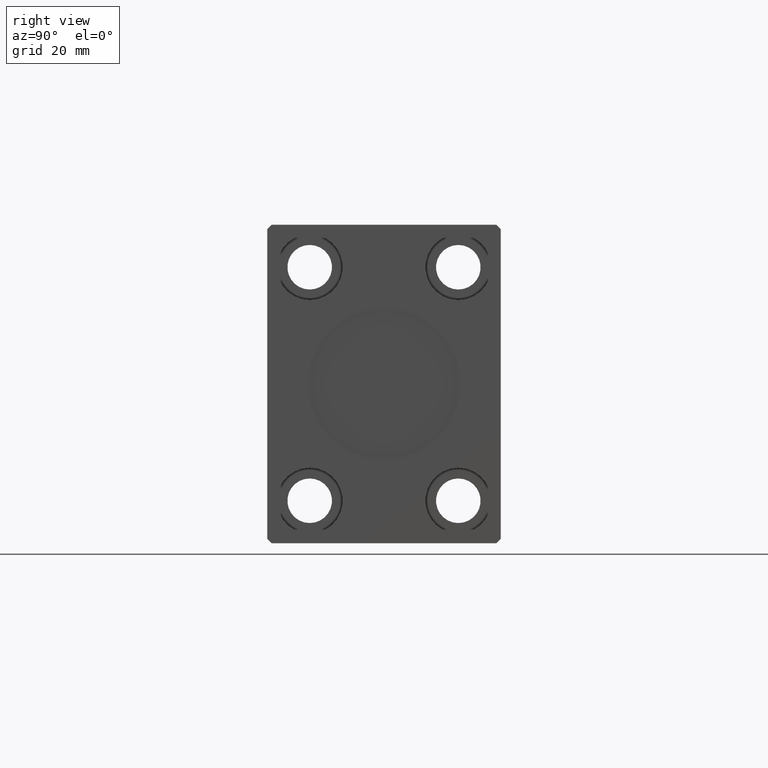
[diagram: clean part render]
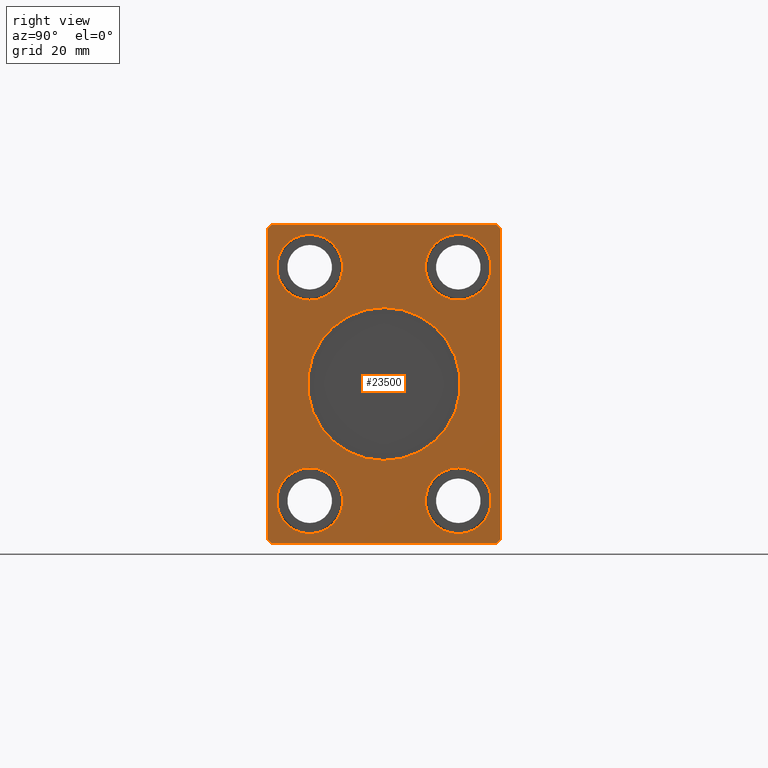
[diagram: same view with one face highlighted and labeled with its STEP entity id]
A machine part, right view. The second image highlights one B-rep face of the part: STEP entity #23500.
In plain terms, the highlighted planar face has unit normal (1, 0, 0).
Its self-contained STEP definition (entity closure, byte-faithful):
#149 = VECTOR ( 'NONE', #8469, 1000.000000000000114 ) ;
#626 = DIRECTION ( 'NONE',  ( -1.000000000000000000, -0.000000000000000000, -0.000000000000000000 ) ) ;
#1186 = EDGE_LOOP ( 'NONE', ( #3259, #14804 ) ) ;
#1526 = EDGE_CURVE ( 'NONE', #23907, #2179, #5941, .T. ) ;
#1968 = ORIENTED_EDGE ( 'NONE', *, *, #39001, .T. ) ;
#2174 = EDGE_CURVE ( 'NONE', #3465, #27504, #21956, .T. ) ;
#2179 = VERTEX_POINT ( 'NONE', #39325 ) ;
#2394 = EDGE_CURVE ( 'NONE', #13267, #12981, #10742, .T. ) ;
#3259 = ORIENTED_EDGE ( 'NONE', *, *, #13091, .F. ) ;
#3465 = VERTEX_POINT ( 'NONE', #6832 ) ;
#3545 = VECTOR ( 'NONE', #25538, 1000.000000000000000 ) ;
#3571 = CIRCLE ( 'NONE', #27572, 7.750000000000003553 ) ;
#4192 = ORIENTED_EDGE ( 'NONE', *, *, #20157, .F. ) ;
#4203 = CIRCLE ( 'NONE', #16561, 18.00000000000000000 ) ;
#5155 = DIRECTION ( 'NONE',  ( 0.000000000000000000, 0.000000000000000000, -1.000000000000000000 ) ) ;
#5233 = AXIS2_PLACEMENT_3D ( 'NONE', #7263, #626, #17556 ) ;
#5257 = CIRCLE ( 'NONE', #26541, 7.750000000000003553 ) ;
#5355 = CARTESIAN_POINT ( 'NONE',  ( 145.0000000000000000, 17.50000000000000000, -27.50000000000000000 ) ) ;
#5941 = CIRCLE ( 'NONE', #5233, 7.750000000000003553 ) ;
#6030 = EDGE_LOOP ( 'NONE', ( #14301, #16124, #27066, #22499, #32827, #23125, #10491, #32772 ) ) ;
#6119 = CARTESIAN_POINT ( 'NONE',  ( 145.0000000000000000, 17.50000000000000000, -19.74999999999999645 ) ) ;
#6238 = VERTEX_POINT ( 'NONE', #16267 ) ;
#6614 = CARTESIAN_POINT ( 'NONE',  ( 145.0000000000000000, 26.50000000000000711, -37.49999999999999289 ) ) ;
#6704 = EDGE_CURVE ( 'NONE', #6238, #37317, #14660, .T. ) ;
#6832 = CARTESIAN_POINT ( 'NONE',  ( 145.0000000000000000, 27.50000000000000711, -36.49999999999999289 ) ) ;
#6845 = VECTOR ( 'NONE', #20078, 1000.000000000000000 ) ;
#7263 = CARTESIAN_POINT ( 'NONE',  ( 145.0000000000000000, -17.50000000000000000, 27.50000000000000000 ) ) ;
#7436 = CARTESIAN_POINT ( 'NONE',  ( 145.0000000000000000, 0.000000000000000000, 0.000000000000000000 ) ) ;
#7641 = VERTEX_POINT ( 'NONE', #9331 ) ;
#8159 = AXIS2_PLACEMENT_3D ( 'NONE', #7436, #29577, #20125 ) ;
#8218 = DIRECTION ( 'NONE',  ( 0.000000000000000000, 0.000000000000000000, -1.000000000000000000 ) ) ;
#8232 = CARTESIAN_POINT ( 'NONE',  ( 145.0000000000000000, -26.50000000000000711, 37.50000000000000711 ) ) ;
#8369 = VECTOR ( 'NONE', #16493, 1000.000000000000114 ) ;
#8469 = DIRECTION ( 'NONE',  ( 0.000000000000000000, 0.7071067811865451302, -0.7071067811865500152 ) ) ;
#8566 = DIRECTION ( 'NONE',  ( 0.000000000000000000, 0.000000000000000000, 1.000000000000000000 ) ) ;
#8631 = CARTESIAN_POINT ( 'NONE',  ( 145.0000000000000000, 2.204364238465235428E-15, 18.00000000000000000 ) ) ;
#8680 = ORIENTED_EDGE ( 'NONE', *, *, #1526, .T. ) ;
#9024 = ORIENTED_EDGE ( 'NONE', *, *, #15048, .F. ) ;
#9142 = EDGE_CURVE ( 'NONE', #2179, #23907, #18945, .T. ) ;
#9272 = LINE ( 'NONE', #22384, #149 ) ;
#9331 = CARTESIAN_POINT ( 'NONE',  ( 145.0000000000000000, -26.50000000000000355, -37.49999999999999289 ) ) ;
#9558 = CARTESIAN_POINT ( 'NONE',  ( 145.0000000000000000, 26.50000000000000355, 37.50000000000000711 ) ) ;
#10130 = CIRCLE ( 'NONE', #38254, 7.750000000000003553 ) ;
#10223 = FACE_BOUND ( 'NONE', #32720, .T. ) ;
#10491 = ORIENTED_EDGE ( 'NONE', *, *, #39156, .T. ) ;
#10640 = PLANE ( 'NONE',  #8159 ) ;
#10643 = DIRECTION ( 'NONE',  ( 0.000000000000000000, 0.000000000000000000, -1.000000000000000000 ) ) ;
#10742 = CIRCLE ( 'NONE', #38903, 7.750000000000003553 ) ;
#11021 = DIRECTION ( 'NONE',  ( 0.000000000000000000, -0.7071067811865474617, -0.7071067811865474617 ) ) ;
#11285 = DIRECTION ( 'NONE',  ( 1.000000000000000000, -0.000000000000000000, -0.000000000000000000 ) ) ;
#11806 = CARTESIAN_POINT ( 'NONE',  ( 145.0000000000000000, -17.50000000000000000, -27.50000000000000000 ) ) ;
#12257 = CARTESIAN_POINT ( 'NONE',  ( 145.0000000000000000, 17.50000000000000000, 27.50000000000000000 ) ) ;
#12981 = VERTEX_POINT ( 'NONE', #13746 ) ;
#13091 = EDGE_CURVE ( 'NONE', #36940, #32416, #5257, .T. ) ;
#13267 = VERTEX_POINT ( 'NONE', #6119 ) ;
#13311 = DIRECTION ( 'NONE',  ( 0.000000000000000000, -4.752667057470704875E-17, 1.000000000000000000 ) ) ;
#13436 = FACE_BOUND ( 'NONE', #22862, .T. ) ;
#13446 = CARTESIAN_POINT ( 'NONE',  ( 145.0000000000000000, 0.000000000000000000, -18.00000000000000000 ) ) ;
#13740 = VERTEX_POINT ( 'NONE', #27943 ) ;
#13746 = CARTESIAN_POINT ( 'NONE',  ( 145.0000000000000000, 17.50000000000000000, -35.25000000000000000 ) ) ;
#13948 = VERTEX_POINT ( 'NONE', #34314 ) ;
#14301 = ORIENTED_EDGE ( 'NONE', *, *, #36527, .T. ) ;
#14660 = LINE ( 'NONE', #8232, #31331 ) ;
#14804 = ORIENTED_EDGE ( 'NONE', *, *, #16727, .F. ) ;
#14873 = VECTOR ( 'NONE', #13311, 1000.000000000000000 ) ;
#15048 = EDGE_CURVE ( 'NONE', #34299, #13740, #10130, .T. ) ;
#15651 = CARTESIAN_POINT ( 'NONE',  ( 145.0000000000000000, 17.50000000000000000, -27.50000000000000000 ) ) ;
#16124 = ORIENTED_EDGE ( 'NONE', *, *, #24471, .T. ) ;
#16267 = CARTESIAN_POINT ( 'NONE',  ( 145.0000000000000000, -26.50000000000000711, 37.50000000000000711 ) ) ;
#16493 = DIRECTION ( 'NONE',  ( 0.000000000000000000, 0.7071067811865474617, 0.7071067811865474617 ) ) ;
#16561 = AXIS2_PLACEMENT_3D ( 'NONE', #34044, #16881, #10643 ) ;
#16727 = EDGE_CURVE ( 'NONE', #32416, #36940, #41614, .T. ) ;
#16881 = DIRECTION ( 'NONE',  ( 1.000000000000000000, 0.000000000000000000, 0.000000000000000000 ) ) ;
#17043 = CARTESIAN_POINT ( 'NONE',  ( 145.0000000000000000, -26.50000000000000355, -37.49999999999999289 ) ) ;
#17556 = DIRECTION ( 'NONE',  ( 0.000000000000000000, 0.000000000000000000, 1.000000000000000000 ) ) ;
#17766 = VERTEX_POINT ( 'NONE', #8631 ) ;
#18394 = CARTESIAN_POINT ( 'NONE',  ( 145.0000000000000000, 17.50000000000000000, 27.50000000000000000 ) ) ;
#18460 = DIRECTION ( 'NONE',  ( 0.000000000000000000, 0.000000000000000000, 1.000000000000000000 ) ) ;
#18542 = CARTESIAN_POINT ( 'NONE',  ( 145.0000000000000000, -17.50000000000000000, 35.25000000000000000 ) ) ;
#18945 = CIRCLE ( 'NONE', #35400, 7.750000000000003553 ) ;
#19149 = DIRECTION ( 'NONE',  ( 0.000000000000000000, 0.000000000000000000, -1.000000000000000000 ) ) ;
#19708 = FACE_BOUND ( 'NONE', #1186, .T. ) ;
#19767 = CARTESIAN_POINT ( 'NONE',  ( 145.0000000000000000, -17.50000000000000000, 27.50000000000000000 ) ) ;
#20078 = DIRECTION ( 'NONE',  ( 0.000000000000000000, 1.000000000000000000, 0.000000000000000000 ) ) ;
#20125 = DIRECTION ( 'NONE',  ( 0.000000000000000000, 0.000000000000000000, -1.000000000000000000 ) ) ;
#20157 = EDGE_CURVE ( 'NONE', #28917, #17766, #38926, .T. ) ;
#20413 = AXIS2_PLACEMENT_3D ( 'NONE', #36799, #30358, #8218 ) ;
#20577 = LINE ( 'NONE', #6614, #8369 ) ;
#21827 = LINE ( 'NONE', #9558, #35612 ) ;
#21956 = LINE ( 'NONE', #35047, #14873 ) ;
#22384 = CARTESIAN_POINT ( 'NONE',  ( 145.0000000000000000, -27.50000000000000355, -36.49999999999998579 ) ) ;
#22437 = CARTESIAN_POINT ( 'NONE',  ( 145.0000000000000000, -17.50000000000000000, -27.50000000000000000 ) ) ;
#22499 = ORIENTED_EDGE ( 'NONE', *, *, #32281, .T. ) ;
#22862 = EDGE_LOOP ( 'NONE', ( #39425, #9024 ) ) ;
#22865 = DIRECTION ( 'NONE',  ( 0.000000000000000000, 0.000000000000000000, -1.000000000000000000 ) ) ;
#22982 = DIRECTION ( 'NONE',  ( 0.000000000000000000, 0.000000000000000000, 1.000000000000000000 ) ) ;
#23107 = AXIS2_PLACEMENT_3D ( 'NONE', #22437, #35311, #22865 ) ;
#23125 = ORIENTED_EDGE ( 'NONE', *, *, #27556, .T. ) ;
#23438 = VECTOR ( 'NONE', #41820, 1000.000000000000114 ) ;
#23500 = ADVANCED_FACE ( 'NONE', ( #10223, #30199, #36434, #29993, #19708, #13436 ), #10640, .T. ) ;
#23907 = VERTEX_POINT ( 'NONE', #18542 ) ;
#24088 = CARTESIAN_POINT ( 'NONE',  ( 145.0000000000000000, 27.50000000000000355, 36.50000000000000711 ) ) ;
#24144 = LINE ( 'NONE', #17043, #6845 ) ;
#24471 = EDGE_CURVE ( 'NONE', #34837, #6238, #21827, .T. ) ;
#25141 = DIRECTION ( 'NONE',  ( 1.000000000000000000, -0.000000000000000000, -0.000000000000000000 ) ) ;
#25538 = DIRECTION ( 'NONE',  ( 0.000000000000000000, 4.752667057470705491E-17, -1.000000000000000000 ) ) ;
#26024 = DIRECTION ( 'NONE',  ( 1.000000000000000000, -0.000000000000000000, -0.000000000000000000 ) ) ;
#26108 = CARTESIAN_POINT ( 'NONE',  ( 145.0000000000000000, 27.50000000000000355, 36.50000000000000711 ) ) ;
#26377 = CARTESIAN_POINT ( 'NONE',  ( 145.0000000000000000, -17.50000000000000000, -19.74999999999999645 ) ) ;
#26541 = AXIS2_PLACEMENT_3D ( 'NONE', #11806, #25141, #5155 ) ;
#26937 = CARTESIAN_POINT ( 'NONE',  ( 145.0000000000000000, -17.50000000000000000, -35.25000000000000000 ) ) ;
#27015 = ORIENTED_EDGE ( 'NONE', *, *, #36677, .F. ) ;
#27066 = ORIENTED_EDGE ( 'NONE', *, *, #6704, .T. ) ;
#27504 = VERTEX_POINT ( 'NONE', #26108 ) ;
#27556 = EDGE_CURVE ( 'NONE', #7641, #36743, #24144, .T. ) ;
#27572 = AXIS2_PLACEMENT_3D ( 'NONE', #5355, #40577, #18460 ) ;
#27943 = CARTESIAN_POINT ( 'NONE',  ( 145.0000000000000000, 17.50000000000000000, 19.74999999999999645 ) ) ;
#28125 = DIRECTION ( 'NONE',  ( -1.000000000000000000, -0.000000000000000000, -0.000000000000000000 ) ) ;
#28276 = DIRECTION ( 'NONE',  ( 0.000000000000000000, 0.000000000000000000, -1.000000000000000000 ) ) ;
#28479 = CARTESIAN_POINT ( 'NONE',  ( 145.0000000000000000, 26.50000000000000711, -37.49999999999999289 ) ) ;
#28917 = VERTEX_POINT ( 'NONE', #13446 ) ;
#29009 = DIRECTION ( 'NONE',  ( -1.000000000000000000, -0.000000000000000000, -0.000000000000000000 ) ) ;
#29577 = DIRECTION ( 'NONE',  ( 1.000000000000000000, 0.000000000000000000, 0.000000000000000000 ) ) ;
#29993 = FACE_OUTER_BOUND ( 'NONE', #6030, .T. ) ;
#30028 = EDGE_LOOP ( 'NONE', ( #1968, #41227 ) ) ;
#30199 = FACE_BOUND ( 'NONE', #40623, .T. ) ;
#30358 = DIRECTION ( 'NONE',  ( 1.000000000000000000, 0.000000000000000000, 0.000000000000000000 ) ) ;
#31331 = VECTOR ( 'NONE', #11021, 1000.000000000000114 ) ;
#32281 = EDGE_CURVE ( 'NONE', #37317, #13948, #32596, .T. ) ;
#32416 = VERTEX_POINT ( 'NONE', #26377 ) ;
#32596 = LINE ( 'NONE', #35194, #3545 ) ;
#32720 = EDGE_LOOP ( 'NONE', ( #4192, #27015 ) ) ;
#32772 = ORIENTED_EDGE ( 'NONE', *, *, #2174, .T. ) ;
#32827 = ORIENTED_EDGE ( 'NONE', *, *, #33423, .T. ) ;
#32857 = CARTESIAN_POINT ( 'NONE',  ( 145.0000000000000000, -27.50000000000000711, 36.50000000000000711 ) ) ;
#33423 = EDGE_CURVE ( 'NONE', #13948, #7641, #9272, .T. ) ;
#33747 = ORIENTED_EDGE ( 'NONE', *, *, #9142, .T. ) ;
#34044 = CARTESIAN_POINT ( 'NONE',  ( 145.0000000000000000, 0.000000000000000000, 0.000000000000000000 ) ) ;
#34299 = VERTEX_POINT ( 'NONE', #34906 ) ;
#34314 = CARTESIAN_POINT ( 'NONE',  ( 145.0000000000000000, -27.50000000000000355, -36.49999999999998579 ) ) ;
#34837 = VERTEX_POINT ( 'NONE', #38805 ) ;
#34906 = CARTESIAN_POINT ( 'NONE',  ( 145.0000000000000000, 17.50000000000000000, 35.25000000000000000 ) ) ;
#34918 = DIRECTION ( 'NONE',  ( 0.000000000000000000, -1.000000000000000000, 0.000000000000000000 ) ) ;
#35047 = CARTESIAN_POINT ( 'NONE',  ( 145.0000000000000000, 27.50000000000000711, -36.49999999999999289 ) ) ;
#35119 = CIRCLE ( 'NONE', #39228, 7.750000000000003553 ) ;
#35194 = CARTESIAN_POINT ( 'NONE',  ( 145.0000000000000000, -27.50000000000000711, 36.50000000000000711 ) ) ;
#35311 = DIRECTION ( 'NONE',  ( 1.000000000000000000, -0.000000000000000000, -0.000000000000000000 ) ) ;
#35400 = AXIS2_PLACEMENT_3D ( 'NONE', #19767, #29009, #22982 ) ;
#35612 = VECTOR ( 'NONE', #34918, 1000.000000000000000 ) ;
#36434 = FACE_BOUND ( 'NONE', #30028, .T. ) ;
#36527 = EDGE_CURVE ( 'NONE', #27504, #34837, #37376, .T. ) ;
#36677 = EDGE_CURVE ( 'NONE', #17766, #28917, #4203, .T. ) ;
#36743 = VERTEX_POINT ( 'NONE', #28479 ) ;
#36799 = CARTESIAN_POINT ( 'NONE',  ( 145.0000000000000000, 0.000000000000000000, 0.000000000000000000 ) ) ;
#36940 = VERTEX_POINT ( 'NONE', #26937 ) ;
#37317 = VERTEX_POINT ( 'NONE', #32857 ) ;
#37376 = LINE ( 'NONE', #24088, #23438 ) ;
#38254 = AXIS2_PLACEMENT_3D ( 'NONE', #18394, #11285, #28276 ) ;
#38794 = EDGE_CURVE ( 'NONE', #13740, #34299, #35119, .T. ) ;
#38805 = CARTESIAN_POINT ( 'NONE',  ( 145.0000000000000000, 26.50000000000000355, 37.50000000000000711 ) ) ;
#38903 = AXIS2_PLACEMENT_3D ( 'NONE', #15651, #28125, #8566 ) ;
#38926 = CIRCLE ( 'NONE', #20413, 18.00000000000000000 ) ;
#39001 = EDGE_CURVE ( 'NONE', #12981, #13267, #3571, .T. ) ;
#39156 = EDGE_CURVE ( 'NONE', #36743, #3465, #20577, .T. ) ;
#39228 = AXIS2_PLACEMENT_3D ( 'NONE', #12257, #26024, #19149 ) ;
#39325 = CARTESIAN_POINT ( 'NONE',  ( 145.0000000000000000, -17.50000000000000000, 19.74999999999999645 ) ) ;
#39425 = ORIENTED_EDGE ( 'NONE', *, *, #38794, .F. ) ;
#40577 = DIRECTION ( 'NONE',  ( -1.000000000000000000, -0.000000000000000000, -0.000000000000000000 ) ) ;
#40623 = EDGE_LOOP ( 'NONE', ( #33747, #8680 ) ) ;
#41227 = ORIENTED_EDGE ( 'NONE', *, *, #2394, .T. ) ;
#41614 = CIRCLE ( 'NONE', #23107, 7.750000000000003553 ) ;
#41820 = DIRECTION ( 'NONE',  ( 0.000000000000000000, -0.7071067811865474617, 0.7071067811865474617 ) ) ;